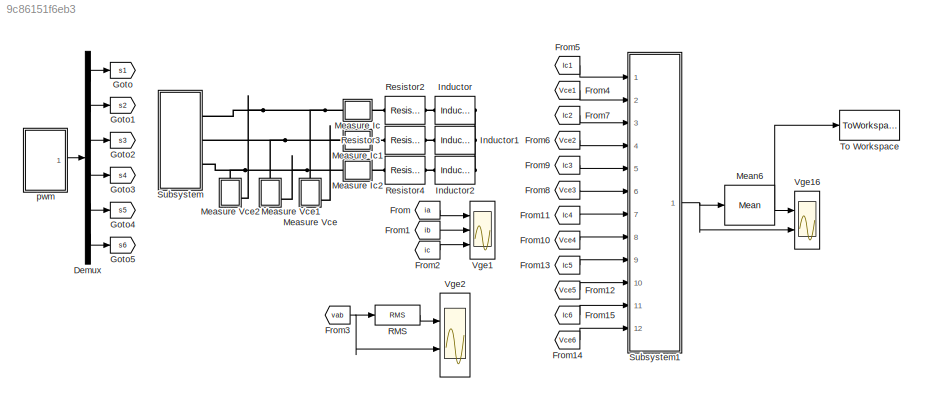
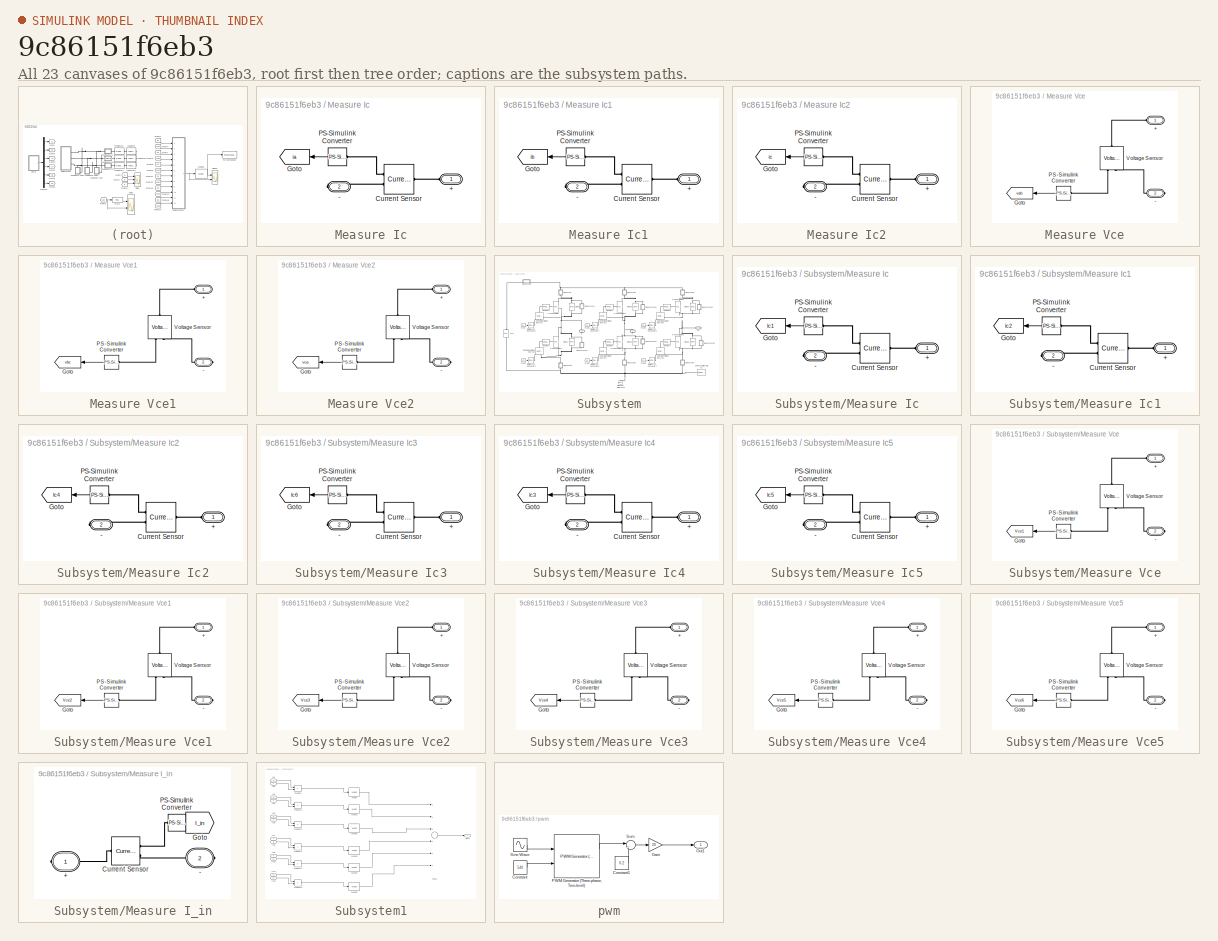
[diagram: thumbnail index - all 23 canvases of the model, root first then tree order]
MODEL slx_9c86151f6eb3
KIND model
CONFIG AbsTol = 1e-3
CONFIG EnableMultiTasking = on
CONFIG FixedStep = auto
CONFIG MaxStep = auto
CONFIG MinStep = auto
CONFIG RelTol = 1e-3
CONFIG SampleTimeConstraint = Unconstrained
CONFIG Solver = VariableStepAuto
CONFIG SolverName = VariableStepAuto
CONFIG StartTime = 0.0
CONFIG StopTime = 0.015
BLOCK [Demux] Demux
  DisplayOption = bar
  Outputs = 6
  Ports = [1, 6]
BLOCK [From] From
  GotoTag = ia
  TagVisibility = global
BLOCK [From] From1
  GotoTag = ib
  TagVisibility = global
BLOCK [From] From10
  GotoTag = Vce4
  TagVisibility = global
BLOCK [From] From11
  GotoTag = Ic4
  TagVisibility = global
BLOCK [From] From12
  GotoTag = Vce5
  TagVisibility = global
BLOCK [From] From13
  GotoTag = Ic5
  TagVisibility = global
BLOCK [From] From14
  GotoTag = Vce6
  TagVisibility = global
BLOCK [From] From15
  GotoTag = Ic6
  TagVisibility = global
BLOCK [From] From2
  GotoTag = ic
  TagVisibility = global
BLOCK [From] From3
  GotoTag = vab
  TagVisibility = global
BLOCK [From] From4
  GotoTag = Vce1
  TagVisibility = global
BLOCK [From] From5
  GotoTag = Ic1
  TagVisibility = global
BLOCK [From] From6
  GotoTag = Vce2
  TagVisibility = global
BLOCK [From] From7
  GotoTag = Ic2
  TagVisibility = global
BLOCK [From] From8
  GotoTag = Vce3
  TagVisibility = global
BLOCK [From] From9
  GotoTag = Ic3
  TagVisibility = global
BLOCK [Goto] Goto
  GotoTag = s1
  TagVisibility = global
BLOCK [Goto] Goto1
  GotoTag = s2
  TagVisibility = global
BLOCK [Goto] Goto2
  GotoTag = s3
  TagVisibility = global
BLOCK [Goto] Goto3
  GotoTag = s4
  TagVisibility = global
BLOCK [Goto] Goto4
  GotoTag = s5
  TagVisibility = global
BLOCK [Goto] Goto5
  GotoTag = s6
  TagVisibility = global
BLOCK [Reference] Inductor  REF=fl_lib/Electrical/Electrical Elements/Inductor
  Ports = [0, 0, 0, 0, 0, 1, 1]
  SourceBlock = fl_lib/Electrical/Electrical Elements/Inductor
  SourceProductBaseCode = SS
  SourceProductName = Simscape
  SourceType = Inductor
BLOCK [Reference] Inductor1  REF=fl_lib/Electrical/Electrical Elements/Inductor
  Ports = [0, 0, 0, 0, 0, 1, 1]
  SourceBlock = fl_lib/Electrical/Electrical Elements/Inductor
  SourceProductBaseCode = SS
  SourceProductName = Simscape
  SourceType = Inductor
BLOCK [Reference] Inductor2  REF=fl_lib/Electrical/Electrical Elements/Inductor
  Ports = [0, 0, 0, 0, 0, 1, 1]
  SourceBlock = fl_lib/Electrical/Electrical Elements/Inductor
  SourceProductBaseCode = SS
  SourceProductName = Simscape
  SourceType = Inductor
BLOCK [Reference] Mean6  REF=powerlib_meascontrol/Measurements/Mean
  Ports = [1, 1]
  SourceBlock = powerlib_meascontrol/Measurements/Mean
  SourceProductBaseCode = PS
  SourceProductName = Simscape Power Systems
  SourceType = Mean
BLOCK [SubSystem] Measure Ic
  Ports = [0, 0, 0, 0, 0, 1, 1]
  RequestExecContextInheritance = off
BLOCK [PMIOPort] Measure Ic/+
  Side = Left
BLOCK [PMIOPort] Measure Ic/-
  Port = 2
  Side = Right
BLOCK [Reference] Measure Ic/Current Sensor  REF=fl_lib/Electrical/Electrical Sensors/Current Sensor
  Ports = [0, 0, 0, 0, 0, 1, 2]
  SourceBlock = fl_lib/Electrical/Electrical Sensors/Current Sensor
  SourceProductBaseCode = SS
  SourceProductName = Simscape
  SourceType = Current Sensor
BLOCK [Goto] Measure Ic/Goto
  GotoTag = ia
  TagVisibility = global
BLOCK [Reference] Measure Ic/PS-Simulink Converter  REF=nesl_utility/PS-Simulink
Converter
  Ports = [0, 1, 0, 0, 0, 1]
  SourceBlock = nesl_utility/PS-Simulink\nConverter
  SourceProductBaseCode = SS
  SourceProductName = Simscape
  SourceType = PS-Simulink\nConverter
BLOCK [SubSystem] Measure Ic1
  Ports = [0, 0, 0, 0, 0, 1, 1]
  RequestExecContextInheritance = off
BLOCK [PMIOPort] Measure Ic1/+
  Side = Left
BLOCK [PMIOPort] Measure Ic1/-
  Port = 2
  Side = Right
BLOCK [Reference] Measure Ic1/Current Sensor  REF=fl_lib/Electrical/Electrical Sensors/Current Sensor
  Ports = [0, 0, 0, 0, 0, 1, 2]
  SourceBlock = fl_lib/Electrical/Electrical Sensors/Current Sensor
  SourceProductBaseCode = SS
  SourceProductName = Simscape
  SourceType = Current Sensor
BLOCK [Goto] Measure Ic1/Goto
  GotoTag = ib
  TagVisibility = global
BLOCK [Reference] Measure Ic1/PS-Simulink Converter  REF=nesl_utility/PS-Simulink
Converter
  Ports = [0, 1, 0, 0, 0, 1]
  SourceBlock = nesl_utility/PS-Simulink\nConverter
  SourceProductBaseCode = SS
  SourceProductName = Simscape
  SourceType = PS-Simulink\nConverter
BLOCK [SubSystem] Measure Ic2
  Ports = [0, 0, 0, 0, 0, 1, 1]
  RequestExecContextInheritance = off
BLOCK [PMIOPort] Measure Ic2/+
  Side = Left
BLOCK [PMIOPort] Measure Ic2/-
  Port = 2
  Side = Right
BLOCK [Reference] Measure Ic2/Current Sensor  REF=fl_lib/Electrical/Electrical Sensors/Current Sensor
  Ports = [0, 0, 0, 0, 0, 1, 2]
  SourceBlock = fl_lib/Electrical/Electrical Sensors/Current Sensor
  SourceProductBaseCode = SS
  SourceProductName = Simscape
  SourceType = Current Sensor
BLOCK [Goto] Measure Ic2/Goto
  GotoTag = ic
  TagVisibility = global
BLOCK [Reference] Measure Ic2/PS-Simulink Converter  REF=nesl_utility/PS-Simulink
Converter
  Ports = [0, 1, 0, 0, 0, 1]
  SourceBlock = nesl_utility/PS-Simulink\nConverter
  SourceProductBaseCode = SS
  SourceProductName = Simscape
  SourceType = PS-Simulink\nConverter
BLOCK [SubSystem] Measure Vce
  Ports = [0, 0, 0, 0, 0, 1, 1]
  RequestExecContextInheritance = off
BLOCK [PMIOPort] Measure Vce/+
  Side = Left
BLOCK [PMIOPort] Measure Vce/-
  Port = 2
  Side = Right
BLOCK [Goto] Measure Vce/Goto
  GotoTag = vab
  TagVisibility = global
BLOCK [Reference] Measure Vce/PS-Simulink Converter  REF=nesl_utility/PS-Simulink
Converter
  Ports = [0, 1, 0, 0, 0, 1]
  SourceBlock = nesl_utility/PS-Simulink\nConverter
  SourceProductBaseCode = SS
  SourceProductName = Simscape
  SourceType = PS-Simulink\nConverter
BLOCK [Reference] Measure Vce/Voltage Sensor  REF=fl_lib/Electrical/Electrical Sensors/Voltage Sensor
  Ports = [0, 0, 0, 0, 0, 1, 2]
  SourceBlock = fl_lib/Electrical/Electrical Sensors/Voltage Sensor
  SourceProductBaseCode = SS
  SourceProductName = Simscape
  SourceType = Voltage Sensor
BLOCK [SubSystem] Measure Vce1
  Ports = [0, 0, 0, 0, 0, 1, 1]
  RequestExecContextInheritance = off
BLOCK [PMIOPort] Measure Vce1/+
  Side = Left
BLOCK [PMIOPort] Measure Vce1/-
  Port = 2
  Side = Right
BLOCK [Goto] Measure Vce1/Goto
  GotoTag = vbc
  TagVisibility = global
BLOCK [Reference] Measure Vce1/PS-Simulink Converter  REF=nesl_utility/PS-Simulink
Converter
  Ports = [0, 1, 0, 0, 0, 1]
  SourceBlock = nesl_utility/PS-Simulink\nConverter
  SourceProductBaseCode = SS
  SourceProductName = Simscape
  SourceType = PS-Simulink\nConverter
BLOCK [Reference] Measure Vce1/Voltage Sensor  REF=fl_lib/Electrical/Electrical Sensors/Voltage Sensor
  Ports = [0, 0, 0, 0, 0, 1, 2]
  SourceBlock = fl_lib/Electrical/Electrical Sensors/Voltage Sensor
  SourceProductBaseCode = SS
  SourceProductName = Simscape
  SourceType = Voltage Sensor
BLOCK [SubSystem] Measure Vce2
  Ports = [0, 0, 0, 0, 0, 1, 1]
  RequestExecContextInheritance = off
BLOCK [PMIOPort] Measure Vce2/+
  Side = Left
BLOCK [PMIOPort] Measure Vce2/-
  Port = 2
  Side = Right
BLOCK [Goto] Measure Vce2/Goto
  GotoTag = vca
  TagVisibility = global
BLOCK [Reference] Measure Vce2/PS-Simulink Converter  REF=nesl_utility/PS-Simulink
Converter
  Ports = [0, 1, 0, 0, 0, 1]
  SourceBlock = nesl_utility/PS-Simulink\nConverter
  SourceProductBaseCode = SS
  SourceProductName = Simscape
  SourceType = PS-Simulink\nConverter
BLOCK [Reference] Measure Vce2/Voltage Sensor  REF=fl_lib/Electrical/Electrical Sensors/Voltage Sensor
  Ports = [0, 0, 0, 0, 0, 1, 2]
  SourceBlock = fl_lib/Electrical/Electrical Sensors/Voltage Sensor
  SourceProductBaseCode = SS
  SourceProductName = Simscape
  SourceType = Voltage Sensor
BLOCK [Reference] RMS  REF=powerlib_meascontrol/Measurements/RMS
  Ports = [1, 1]
  SourceBlock = powerlib_meascontrol/Measurements/RMS
  SourceProductBaseCode = PS
  SourceProductName = Simscape Power Systems
  SourceType = RMS
BLOCK [Reference] Resistor2  REF=fl_lib/Electrical/Electrical Elements/Resistor
  Ports = [0, 0, 0, 0, 0, 1, 1]
  SourceBlock = fl_lib/Electrical/Electrical Elements/Resistor
  SourceProductBaseCode = SS
  SourceProductName = Simscape
  SourceType = Resistor
BLOCK [Reference] Resistor3  REF=fl_lib/Electrical/Electrical Elements/Resistor
  Ports = [0, 0, 0, 0, 0, 1, 1]
  SourceBlock = fl_lib/Electrical/Electrical Elements/Resistor
  SourceProductBaseCode = SS
  SourceProductName = Simscape
  SourceType = Resistor
BLOCK [Reference] Resistor4  REF=fl_lib/Electrical/Electrical Elements/Resistor
  Ports = [0, 0, 0, 0, 0, 1, 1]
  SourceBlock = fl_lib/Electrical/Electrical Elements/Resistor
  SourceProductBaseCode = SS
  SourceProductName = Simscape
  SourceType = Resistor
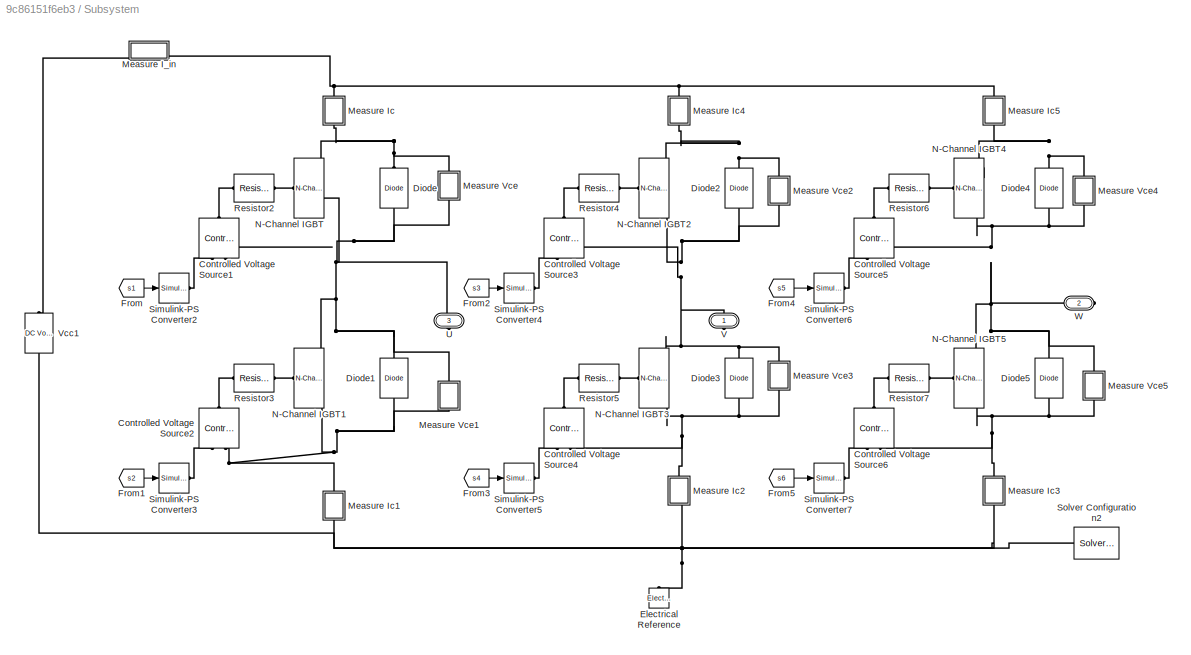
BLOCK [SubSystem] Subsystem
  Ports = [0, 0, 0, 0, 0, 0, 3]
  RequestExecContextInheritance = off
BLOCK [Reference] Subsystem/Controlled Voltage Source1  REF=fl_lib/Electrical/Electrical Sources/Controlled Voltage
Source
  Ports = [0, 0, 0, 0, 0, 1, 2]
  SourceBlock = fl_lib/Electrical/Electrical Sources/Controlled Voltage\nSource
  SourceProductBaseCode = SS
  SourceProductName = Simscape
  SourceType = Controlled Voltage\nSource
BLOCK [Reference] Subsystem/Controlled Voltage Source2  REF=fl_lib/Electrical/Electrical Sources/Controlled Voltage
Source
  Ports = [0, 0, 0, 0, 0, 1, 2]
  SourceBlock = fl_lib/Electrical/Electrical Sources/Controlled Voltage\nSource
  SourceProductBaseCode = SS
  SourceProductName = Simscape
  SourceType = Controlled Voltage\nSource
BLOCK [Reference] Subsystem/Controlled Voltage Source3  REF=fl_lib/Electrical/Electrical Sources/Controlled Voltage
Source
  Ports = [0, 0, 0, 0, 0, 1, 2]
  SourceBlock = fl_lib/Electrical/Electrical Sources/Controlled Voltage\nSource
  SourceProductBaseCode = SS
  SourceProductName = Simscape
  SourceType = Controlled Voltage\nSource
BLOCK [Reference] Subsystem/Controlled Voltage Source4  REF=fl_lib/Electrical/Electrical Sources/Controlled Voltage
Source
  Ports = [0, 0, 0, 0, 0, 1, 2]
  SourceBlock = fl_lib/Electrical/Electrical Sources/Controlled Voltage\nSource
  SourceProductBaseCode = SS
  SourceProductName = Simscape
  SourceType = Controlled Voltage\nSource
BLOCK [Reference] Subsystem/Controlled Voltage Source5  REF=fl_lib/Electrical/Electrical Sources/Controlled Voltage
Source
  Ports = [0, 0, 0, 0, 0, 1, 2]
  SourceBlock = fl_lib/Electrical/Electrical Sources/Controlled Voltage\nSource
  SourceProductBaseCode = SS
  SourceProductName = Simscape
  SourceType = Controlled Voltage\nSource
BLOCK [Reference] Subsystem/Controlled Voltage Source6  REF=fl_lib/Electrical/Electrical Sources/Controlled Voltage
Source
  Ports = [0, 0, 0, 0, 0, 1, 2]
  SourceBlock = fl_lib/Electrical/Electrical Sources/Controlled Voltage\nSource
  SourceProductBaseCode = SS
  SourceProductName = Simscape
  SourceType = Controlled Voltage\nSource
BLOCK [Reference] Subsystem/Diode  REF=elec_lib/Semiconductor
Devices/Diode
  Ports = [0, 0, 0, 0, 0, 1, 1]
  SourceBlock = elec_lib/Semiconductor\nDevices/Diode
  SourceProductBaseCode = SN
  SourceProductName = Simscape Electronics
  SourceType = Diode
BLOCK [Reference] Subsystem/Diode1  REF=elec_lib/Semiconductor
Devices/Diode
  Ports = [0, 0, 0, 0, 0, 1, 1]
  SourceBlock = elec_lib/Semiconductor\nDevices/Diode
  SourceProductBaseCode = SN
  SourceProductName = Simscape Electronics
  SourceType = Diode
BLOCK [Reference] Subsystem/Diode2  REF=elec_lib/Semiconductor
Devices/Diode
  Ports = [0, 0, 0, 0, 0, 1, 1]
  SourceBlock = elec_lib/Semiconductor\nDevices/Diode
  SourceProductBaseCode = SN
  SourceProductName = Simscape Electronics
  SourceType = Diode
BLOCK [Reference] Subsystem/Diode3  REF=elec_lib/Semiconductor
Devices/Diode
  Ports = [0, 0, 0, 0, 0, 1, 1]
  SourceBlock = elec_lib/Semiconductor\nDevices/Diode
  SourceProductBaseCode = SN
  SourceProductName = Simscape Electronics
  SourceType = Diode
BLOCK [Reference] Subsystem/Diode4  REF=elec_lib/Semiconductor
Devices/Diode
  Ports = [0, 0, 0, 0, 0, 1, 1]
  SourceBlock = elec_lib/Semiconductor\nDevices/Diode
  SourceProductBaseCode = SN
  SourceProductName = Simscape Electronics
  SourceType = Diode
BLOCK [Reference] Subsystem/Diode5  REF=elec_lib/Semiconductor
Devices/Diode
  Ports = [0, 0, 0, 0, 0, 1, 1]
  SourceBlock = elec_lib/Semiconductor\nDevices/Diode
  SourceProductBaseCode = SN
  SourceProductName = Simscape Electronics
  SourceType = Diode
BLOCK [Reference] Subsystem/Electrical Reference  REF=fl_lib/Electrical/Electrical Elements/Electrical Reference
  Ports = [0, 0, 0, 0, 0, 1]
  SourceBlock = fl_lib/Electrical/Electrical Elements/Electrical Reference
  SourceProductBaseCode = SS
  SourceProductName = Simscape
  SourceType = Electrical Reference
BLOCK [From] Subsystem/From
  GotoTag = s1
  TagVisibility = global
BLOCK [From] Subsystem/From1
  GotoTag = s2
  TagVisibility = global
BLOCK [From] Subsystem/From2
  GotoTag = s3
  TagVisibility = global
BLOCK [From] Subsystem/From3
  GotoTag = s4
  TagVisibility = global
BLOCK [From] Subsystem/From4
  GotoTag = s5
  TagVisibility = global
BLOCK [From] Subsystem/From5
  GotoTag = s6
  TagVisibility = global
BLOCK [SubSystem] Subsystem/Measure I_in
  Ports = [0, 0, 0, 0, 0, 0, 2]
  RequestExecContextInheritance = off
BLOCK [PMIOPort] Subsystem/Measure I_in/+
  Side = Right
  Tag = PMCPort
BLOCK [PMIOPort] Subsystem/Measure I_in/-
  Port = 2
  Side = Right
  Tag = PMCPort
BLOCK [Reference] Subsystem/Measure I_in/Current Sensor  REF=fl_lib/Electrical/Electrical Sensors/Current Sensor
  Ports = [0, 0, 0, 0, 0, 1, 2]
  SourceBlock = fl_lib/Electrical/Electrical Sensors/Current Sensor
  SourceProductBaseCode = SS
  SourceProductName = Simscape
  SourceType = Current Sensor
BLOCK [Goto] Subsystem/Measure I_in/Goto
  GotoTag = I_in
  TagVisibility = global
BLOCK [Reference] Subsystem/Measure I_in/PS-Simulink Converter  REF=nesl_utility/PS-Simulink
Converter
  Ports = [0, 1, 0, 0, 0, 1]
  SourceBlock = nesl_utility/PS-Simulink\nConverter
  SourceProductBaseCode = SS
  SourceProductName = Simscape
  SourceType = PS-Simulink\nConverter
BLOCK [SubSystem] Subsystem/Measure Ic
  Ports = [0, 0, 0, 0, 0, 1, 1]
  RequestExecContextInheritance = off
BLOCK [PMIOPort] Subsystem/Measure Ic/+
  Side = Left
BLOCK [PMIOPort] Subsystem/Measure Ic/-
  Port = 2
  Side = Right
BLOCK [Reference] Subsystem/Measure Ic/Current Sensor  REF=fl_lib/Electrical/Electrical Sensors/Current Sensor
  Ports = [0, 0, 0, 0, 0, 1, 2]
  SourceBlock = fl_lib/Electrical/Electrical Sensors/Current Sensor
  SourceProductBaseCode = SS
  SourceProductName = Simscape
  SourceType = Current Sensor
BLOCK [Goto] Subsystem/Measure Ic/Goto
  GotoTag = Ic1
  TagVisibility = global
BLOCK [Reference] Subsystem/Measure Ic/PS-Simulink Converter  REF=nesl_utility/PS-Simulink
Converter
  Ports = [0, 1, 0, 0, 0, 1]
  SourceBlock = nesl_utility/PS-Simulink\nConverter
  SourceProductBaseCode = SS
  SourceProductName = Simscape
  SourceType = PS-Simulink\nConverter
BLOCK [SubSystem] Subsystem/Measure Ic1
  Ports = [0, 0, 0, 0, 0, 1, 1]
  RequestExecContextInheritance = off
BLOCK [PMIOPort] Subsystem/Measure Ic1/+
  Side = Left
BLOCK [PMIOPort] Subsystem/Measure Ic1/-
  Port = 2
  Side = Right
BLOCK [Reference] Subsystem/Measure Ic1/Current Sensor  REF=fl_lib/Electrical/Electrical Sensors/Current Sensor
  Ports = [0, 0, 0, 0, 0, 1, 2]
  SourceBlock = fl_lib/Electrical/Electrical Sensors/Current Sensor
  SourceProductBaseCode = SS
  SourceProductName = Simscape
  SourceType = Current Sensor
BLOCK [Goto] Subsystem/Measure Ic1/Goto
  GotoTag = Ic2
  TagVisibility = global
BLOCK [Reference] Subsystem/Measure Ic1/PS-Simulink Converter  REF=nesl_utility/PS-Simulink
Converter
  Ports = [0, 1, 0, 0, 0, 1]
  SourceBlock = nesl_utility/PS-Simulink\nConverter
  SourceProductBaseCode = SS
  SourceProductName = Simscape
  SourceType = PS-Simulink\nConverter
BLOCK [SubSystem] Subsystem/Measure Ic2
  Ports = [0, 0, 0, 0, 0, 1, 1]
  RequestExecContextInheritance = off
BLOCK [PMIOPort] Subsystem/Measure Ic2/+
  Side = Left
BLOCK [PMIOPort] Subsystem/Measure Ic2/-
  Port = 2
  Side = Right
BLOCK [Reference] Subsystem/Measure Ic2/Current Sensor  REF=fl_lib/Electrical/Electrical Sensors/Current Sensor
  Ports = [0, 0, 0, 0, 0, 1, 2]
  SourceBlock = fl_lib/Electrical/Electrical Sensors/Current Sensor
  SourceProductBaseCode = SS
  SourceProductName = Simscape
  SourceType = Current Sensor
BLOCK [Goto] Subsystem/Measure Ic2/Goto
  GotoTag = Ic4
  TagVisibility = global
BLOCK [Reference] Subsystem/Measure Ic2/PS-Simulink Converter  REF=nesl_utility/PS-Simulink
Converter
  Ports = [0, 1, 0, 0, 0, 1]
  SourceBlock = nesl_utility/PS-Simulink\nConverter
  SourceProductBaseCode = SS
  SourceProductName = Simscape
  SourceType = PS-Simulink\nConverter
BLOCK [SubSystem] Subsystem/Measure Ic3
  Ports = [0, 0, 0, 0, 0, 1, 1]
  RequestExecContextInheritance = off
BLOCK [PMIOPort] Subsystem/Measure Ic3/+
  Side = Left
BLOCK [PMIOPort] Subsystem/Measure Ic3/-
  Port = 2
  Side = Right
BLOCK [Reference] Subsystem/Measure Ic3/Current Sensor  REF=fl_lib/Electrical/Electrical Sensors/Current Sensor
  Ports = [0, 0, 0, 0, 0, 1, 2]
  SourceBlock = fl_lib/Electrical/Electrical Sensors/Current Sensor
  SourceProductBaseCode = SS
  SourceProductName = Simscape
  SourceType = Current Sensor
BLOCK [Goto] Subsystem/Measure Ic3/Goto
  GotoTag = Ic6
  TagVisibility = global
BLOCK [Reference] Subsystem/Measure Ic3/PS-Simulink Converter  REF=nesl_utility/PS-Simulink
Converter
  Ports = [0, 1, 0, 0, 0, 1]
  SourceBlock = nesl_utility/PS-Simulink\nConverter
  SourceProductBaseCode = SS
  SourceProductName = Simscape
  SourceType = PS-Simulink\nConverter
BLOCK [SubSystem] Subsystem/Measure Ic4
  Ports = [0, 0, 0, 0, 0, 1, 1]
  RequestExecContextInheritance = off
BLOCK [PMIOPort] Subsystem/Measure Ic4/+
  Side = Left
BLOCK [PMIOPort] Subsystem/Measure Ic4/-
  Port = 2
  Side = Right
BLOCK [Reference] Subsystem/Measure Ic4/Current Sensor  REF=fl_lib/Electrical/Electrical Sensors/Current Sensor
  Ports = [0, 0, 0, 0, 0, 1, 2]
  SourceBlock = fl_lib/Electrical/Electrical Sensors/Current Sensor
  SourceProductBaseCode = SS
  SourceProductName = Simscape
  SourceType = Current Sensor
BLOCK [Goto] Subsystem/Measure Ic4/Goto
  GotoTag = Ic3
  TagVisibility = global
BLOCK [Reference] Subsystem/Measure Ic4/PS-Simulink Converter  REF=nesl_utility/PS-Simulink
Converter
  Ports = [0, 1, 0, 0, 0, 1]
  SourceBlock = nesl_utility/PS-Simulink\nConverter
  SourceProductBaseCode = SS
  SourceProductName = Simscape
  SourceType = PS-Simulink\nConverter
BLOCK [SubSystem] Subsystem/Measure Ic5
  Ports = [0, 0, 0, 0, 0, 1, 1]
  RequestExecContextInheritance = off
BLOCK [PMIOPort] Subsystem/Measure Ic5/+
  Side = Left
BLOCK [PMIOPort] Subsystem/Measure Ic5/-
  Port = 2
  Side = Right
BLOCK [Reference] Subsystem/Measure Ic5/Current Sensor  REF=fl_lib/Electrical/Electrical Sensors/Current Sensor
  Ports = [0, 0, 0, 0, 0, 1, 2]
  SourceBlock = fl_lib/Electrical/Electrical Sensors/Current Sensor
  SourceProductBaseCode = SS
  SourceProductName = Simscape
  SourceType = Current Sensor
BLOCK [Goto] Subsystem/Measure Ic5/Goto
  GotoTag = Ic5
  TagVisibility = global
BLOCK [Reference] Subsystem/Measure Ic5/PS-Simulink Converter  REF=nesl_utility/PS-Simulink
Converter
  Ports = [0, 1, 0, 0, 0, 1]
  SourceBlock = nesl_utility/PS-Simulink\nConverter
  SourceProductBaseCode = SS
  SourceProductName = Simscape
  SourceType = PS-Simulink\nConverter
BLOCK [SubSystem] Subsystem/Measure Vce
  Ports = [0, 0, 0, 0, 0, 1, 1]
  RequestExecContextInheritance = off
BLOCK [PMIOPort] Subsystem/Measure Vce/+
  Side = Left
BLOCK [PMIOPort] Subsystem/Measure Vce/-
  Port = 2
  Side = Right
BLOCK [Goto] Subsystem/Measure Vce/Goto
  GotoTag = Vce1
  TagVisibility = global
BLOCK [Reference] Subsystem/Measure Vce/PS-Simulink Converter  REF=nesl_utility/PS-Simulink
Converter
  Ports = [0, 1, 0, 0, 0, 1]
  SourceBlock = nesl_utility/PS-Simulink\nConverter
  SourceProductBaseCode = SS
  SourceProductName = Simscape
  SourceType = PS-Simulink\nConverter
BLOCK [Reference] Subsystem/Measure Vce/Voltage Sensor  REF=fl_lib/Electrical/Electrical Sensors/Voltage Sensor
  Ports = [0, 0, 0, 0, 0, 1, 2]
  SourceBlock = fl_lib/Electrical/Electrical Sensors/Voltage Sensor
  SourceProductBaseCode = SS
  SourceProductName = Simscape
  SourceType = Voltage Sensor
BLOCK [SubSystem] Subsystem/Measure Vce1
  Ports = [0, 0, 0, 0, 0, 1, 1]
  RequestExecContextInheritance = off
BLOCK [PMIOPort] Subsystem/Measure Vce1/+
  Side = Left
BLOCK [PMIOPort] Subsystem/Measure Vce1/-
  Port = 2
  Side = Right
BLOCK [Goto] Subsystem/Measure Vce1/Goto
  GotoTag = Vce2
  TagVisibility = global
BLOCK [Reference] Subsystem/Measure Vce1/PS-Simulink Converter  REF=nesl_utility/PS-Simulink
Converter
  Ports = [0, 1, 0, 0, 0, 1]
  SourceBlock = nesl_utility/PS-Simulink\nConverter
  SourceProductBaseCode = SS
  SourceProductName = Simscape
  SourceType = PS-Simulink\nConverter
BLOCK [Reference] Subsystem/Measure Vce1/Voltage Sensor  REF=fl_lib/Electrical/Electrical Sensors/Voltage Sensor
  Ports = [0, 0, 0, 0, 0, 1, 2]
  SourceBlock = fl_lib/Electrical/Electrical Sensors/Voltage Sensor
  SourceProductBaseCode = SS
  SourceProductName = Simscape
  SourceType = Voltage Sensor
BLOCK [SubSystem] Subsystem/Measure Vce2
  Ports = [0, 0, 0, 0, 0, 1, 1]
  RequestExecContextInheritance = off
BLOCK [PMIOPort] Subsystem/Measure Vce2/+
  Side = Left
BLOCK [PMIOPort] Subsystem/Measure Vce2/-
  Port = 2
  Side = Right
BLOCK [Goto] Subsystem/Measure Vce2/Goto
  GotoTag = Vce3
  TagVisibility = global
BLOCK [Reference] Subsystem/Measure Vce2/PS-Simulink Converter  REF=nesl_utility/PS-Simulink
Converter
  Ports = [0, 1, 0, 0, 0, 1]
  SourceBlock = nesl_utility/PS-Simulink\nConverter
  SourceProductBaseCode = SS
  SourceProductName = Simscape
  SourceType = PS-Simulink\nConverter
BLOCK [Reference] Subsystem/Measure Vce2/Voltage Sensor  REF=fl_lib/Electrical/Electrical Sensors/Voltage Sensor
  Ports = [0, 0, 0, 0, 0, 1, 2]
  SourceBlock = fl_lib/Electrical/Electrical Sensors/Voltage Sensor
  SourceProductBaseCode = SS
  SourceProductName = Simscape
  SourceType = Voltage Sensor
BLOCK [SubSystem] Subsystem/Measure Vce3
  Ports = [0, 0, 0, 0, 0, 1, 1]
  RequestExecContextInheritance = off
BLOCK [PMIOPort] Subsystem/Measure Vce3/+
  Side = Left
BLOCK [PMIOPort] Subsystem/Measure Vce3/-
  Port = 2
  Side = Right
BLOCK [Goto] Subsystem/Measure Vce3/Goto
  GotoTag = Vce4
  TagVisibility = global
BLOCK [Reference] Subsystem/Measure Vce3/PS-Simulink Converter  REF=nesl_utility/PS-Simulink
Converter
  Ports = [0, 1, 0, 0, 0, 1]
  SourceBlock = nesl_utility/PS-Simulink\nConverter
  SourceProductBaseCode = SS
  SourceProductName = Simscape
  SourceType = PS-Simulink\nConverter
BLOCK [Reference] Subsystem/Measure Vce3/Voltage Sensor  REF=fl_lib/Electrical/Electrical Sensors/Voltage Sensor
  Ports = [0, 0, 0, 0, 0, 1, 2]
  SourceBlock = fl_lib/Electrical/Electrical Sensors/Voltage Sensor
  SourceProductBaseCode = SS
  SourceProductName = Simscape
  SourceType = Voltage Sensor
BLOCK [SubSystem] Subsystem/Measure Vce4
  Ports = [0, 0, 0, 0, 0, 1, 1]
  RequestExecContextInheritance = off
BLOCK [PMIOPort] Subsystem/Measure Vce4/+
  Side = Left
BLOCK [PMIOPort] Subsystem/Measure Vce4/-
  Port = 2
  Side = Right
BLOCK [Goto] Subsystem/Measure Vce4/Goto
  GotoTag = Vce5
  TagVisibility = global
BLOCK [Reference] Subsystem/Measure Vce4/PS-Simulink Converter  REF=nesl_utility/PS-Simulink
Converter
  Ports = [0, 1, 0, 0, 0, 1]
  SourceBlock = nesl_utility/PS-Simulink\nConverter
  SourceProductBaseCode = SS
  SourceProductName = Simscape
  SourceType = PS-Simulink\nConverter
BLOCK [Reference] Subsystem/Measure Vce4/Voltage Sensor  REF=fl_lib/Electrical/Electrical Sensors/Voltage Sensor
  Ports = [0, 0, 0, 0, 0, 1, 2]
  SourceBlock = fl_lib/Electrical/Electrical Sensors/Voltage Sensor
  SourceProductBaseCode = SS
  SourceProductName = Simscape
  SourceType = Voltage Sensor
BLOCK [SubSystem] Subsystem/Measure Vce5
  Ports = [0, 0, 0, 0, 0, 1, 1]
  RequestExecContextInheritance = off
BLOCK [PMIOPort] Subsystem/Measure Vce5/+
  Side = Left
BLOCK [PMIOPort] Subsystem/Measure Vce5/-
  Port = 2
  Side = Right
BLOCK [Goto] Subsystem/Measure Vce5/Goto
  GotoTag = Vce6
  TagVisibility = global
BLOCK [Reference] Subsystem/Measure Vce5/PS-Simulink Converter  REF=nesl_utility/PS-Simulink
Converter
  Ports = [0, 1, 0, 0, 0, 1]
  SourceBlock = nesl_utility/PS-Simulink\nConverter
  SourceProductBaseCode = SS
  SourceProductName = Simscape
  SourceType = PS-Simulink\nConverter
BLOCK [Reference] Subsystem/Measure Vce5/Voltage Sensor  REF=fl_lib/Electrical/Electrical Sensors/Voltage Sensor
  Ports = [0, 0, 0, 0, 0, 1, 2]
  SourceBlock = fl_lib/Electrical/Electrical Sensors/Voltage Sensor
  SourceProductBaseCode = SS
  SourceProductName = Simscape
  SourceType = Voltage Sensor
BLOCK [Reference] Subsystem/N-Channel IGBT  REF=elec_lib/Semiconductor
Devices/N-Channel IGBT
  Ports = [0, 0, 0, 0, 0, 1, 2]
  SourceBlock = elec_lib/Semiconductor\nDevices/N-Channel IGBT
  SourceProductBaseCode = SN
  SourceProductName = Simscape Electronics
  SourceType = N-Channel IGBT
BLOCK [Reference] Subsystem/N-Channel IGBT1  REF=elec_lib/Semiconductor
Devices/N-Channel IGBT
  Ports = [0, 0, 0, 0, 0, 1, 2]
  SourceBlock = elec_lib/Semiconductor\nDevices/N-Channel IGBT
  SourceProductBaseCode = SN
  SourceProductName = Simscape Electronics
  SourceType = N-Channel IGBT
BLOCK [Reference] Subsystem/N-Channel IGBT2  REF=elec_lib/Semiconductor
Devices/N-Channel IGBT
  Ports = [0, 0, 0, 0, 0, 1, 2]
  SourceBlock = elec_lib/Semiconductor\nDevices/N-Channel IGBT
  SourceProductBaseCode = SN
  SourceProductName = Simscape Electronics
  SourceType = N-Channel IGBT
BLOCK [Reference] Subsystem/N-Channel IGBT3  REF=elec_lib/Semiconductor
Devices/N-Channel IGBT
  Ports = [0, 0, 0, 0, 0, 1, 2]
  SourceBlock = elec_lib/Semiconductor\nDevices/N-Channel IGBT
  SourceProductBaseCode = SN
  SourceProductName = Simscape Electronics
  SourceType = N-Channel IGBT
BLOCK [Reference] Subsystem/N-Channel IGBT4  REF=elec_lib/Semiconductor
Devices/N-Channel IGBT
  Ports = [0, 0, 0, 0, 0, 1, 2]
  SourceBlock = elec_lib/Semiconductor\nDevices/N-Channel IGBT
  SourceProductBaseCode = SN
  SourceProductName = Simscape Electronics
  SourceType = N-Channel IGBT
BLOCK [Reference] Subsystem/N-Channel IGBT5  REF=elec_lib/Semiconductor
Devices/N-Channel IGBT
  Ports = [0, 0, 0, 0, 0, 1, 2]
  SourceBlock = elec_lib/Semiconductor\nDevices/N-Channel IGBT
  SourceProductBaseCode = SN
  SourceProductName = Simscape Electronics
  SourceType = N-Channel IGBT
BLOCK [Reference] Subsystem/Resistor2  REF=fl_lib/Electrical/Electrical Elements/Resistor
  Ports = [0, 0, 0, 0, 0, 1, 1]
  SourceBlock = fl_lib/Electrical/Electrical Elements/Resistor
  SourceProductBaseCode = SS
  SourceProductName = Simscape
  SourceType = Resistor
BLOCK [Reference] Subsystem/Resistor3  REF=fl_lib/Electrical/Electrical Elements/Resistor
  Ports = [0, 0, 0, 0, 0, 1, 1]
  SourceBlock = fl_lib/Electrical/Electrical Elements/Resistor
  SourceProductBaseCode = SS
  SourceProductName = Simscape
  SourceType = Resistor
BLOCK [Reference] Subsystem/Resistor4  REF=fl_lib/Electrical/Electrical Elements/Resistor
  Ports = [0, 0, 0, 0, 0, 1, 1]
  SourceBlock = fl_lib/Electrical/Electrical Elements/Resistor
  SourceProductBaseCode = SS
  SourceProductName = Simscape
  SourceType = Resistor
BLOCK [Reference] Subsystem/Resistor5  REF=fl_lib/Electrical/Electrical Elements/Resistor
  Ports = [0, 0, 0, 0, 0, 1, 1]
  SourceBlock = fl_lib/Electrical/Electrical Elements/Resistor
  SourceProductBaseCode = SS
  SourceProductName = Simscape
  SourceType = Resistor
BLOCK [Reference] Subsystem/Resistor6  REF=fl_lib/Electrical/Electrical Elements/Resistor
  Ports = [0, 0, 0, 0, 0, 1, 1]
  SourceBlock = fl_lib/Electrical/Electrical Elements/Resistor
  SourceProductBaseCode = SS
  SourceProductName = Simscape
  SourceType = Resistor
BLOCK [Reference] Subsystem/Resistor7  REF=fl_lib/Electrical/Electrical Elements/Resistor
  Ports = [0, 0, 0, 0, 0, 1, 1]
  SourceBlock = fl_lib/Electrical/Electrical Elements/Resistor
  SourceProductBaseCode = SS
  SourceProductName = Simscape
  SourceType = Resistor
BLOCK [Reference] Subsystem/Simulink-PS Converter2  REF=nesl_utility/Simulink-PS
Converter
  Ports = [1, 0, 0, 0, 0, 0, 1]
  SourceBlock = nesl_utility/Simulink-PS\nConverter
  SourceProductBaseCode = SS
  SourceProductName = Simscape
  SourceType = Simulink-PS\nConverter
BLOCK [Reference] Subsystem/Simulink-PS Converter3  REF=nesl_utility/Simulink-PS
Converter
  Ports = [1, 0, 0, 0, 0, 0, 1]
  SourceBlock = nesl_utility/Simulink-PS\nConverter
  SourceProductBaseCode = SS
  SourceProductName = Simscape
  SourceType = Simulink-PS\nConverter
BLOCK [Reference] Subsystem/Simulink-PS Converter4  REF=nesl_utility/Simulink-PS
Converter
  Ports = [1, 0, 0, 0, 0, 0, 1]
  SourceBlock = nesl_utility/Simulink-PS\nConverter
  SourceProductBaseCode = SS
  SourceProductName = Simscape
  SourceType = Simulink-PS\nConverter
BLOCK [Reference] Subsystem/Simulink-PS Converter5  REF=nesl_utility/Simulink-PS
Converter
  Ports = [1, 0, 0, 0, 0, 0, 1]
  SourceBlock = nesl_utility/Simulink-PS\nConverter
  SourceProductBaseCode = SS
  SourceProductName = Simscape
  SourceType = Simulink-PS\nConverter
BLOCK [Reference] Subsystem/Simulink-PS Converter6  REF=nesl_utility/Simulink-PS
Converter
  Ports = [1, 0, 0, 0, 0, 0, 1]
  SourceBlock = nesl_utility/Simulink-PS\nConverter
  SourceProductBaseCode = SS
  SourceProductName = Simscape
  SourceType = Simulink-PS\nConverter
BLOCK [Reference] Subsystem/Simulink-PS Converter7  REF=nesl_utility/Simulink-PS
Converter
  Ports = [1, 0, 0, 0, 0, 0, 1]
  SourceBlock = nesl_utility/Simulink-PS\nConverter
  SourceProductBaseCode = SS
  SourceProductName = Simscape
  SourceType = Simulink-PS\nConverter
BLOCK [Reference] Subsystem/Solver Configuration2  REF=nesl_utility/Solver
Configuration
  Ports = [0, 0, 0, 0, 0, 0, 1]
  SourceBlock = nesl_utility/Solver\nConfiguration
  SourceProductBaseCode = SS
  SourceProductName = Simscape
  SourceType = Solver\nConfiguration
BLOCK [PMIOPort] Subsystem/U
  Port = 3
  Side = Right
BLOCK [PMIOPort] Subsystem/V
  Side = Right
BLOCK [Reference] Subsystem/Vcc1  REF=fl_lib/Electrical/Electrical Sources/DC Voltage Source
  Ports = [0, 0, 0, 0, 0, 1, 1]
  SourceBlock = fl_lib/Electrical/Electrical Sources/DC Voltage Source
  SourceProductBaseCode = SS
  SourceProductName = Simscape
  SourceType = DC Voltage Source
BLOCK [PMIOPort] Subsystem/W
  Port = 2
  Side = Right
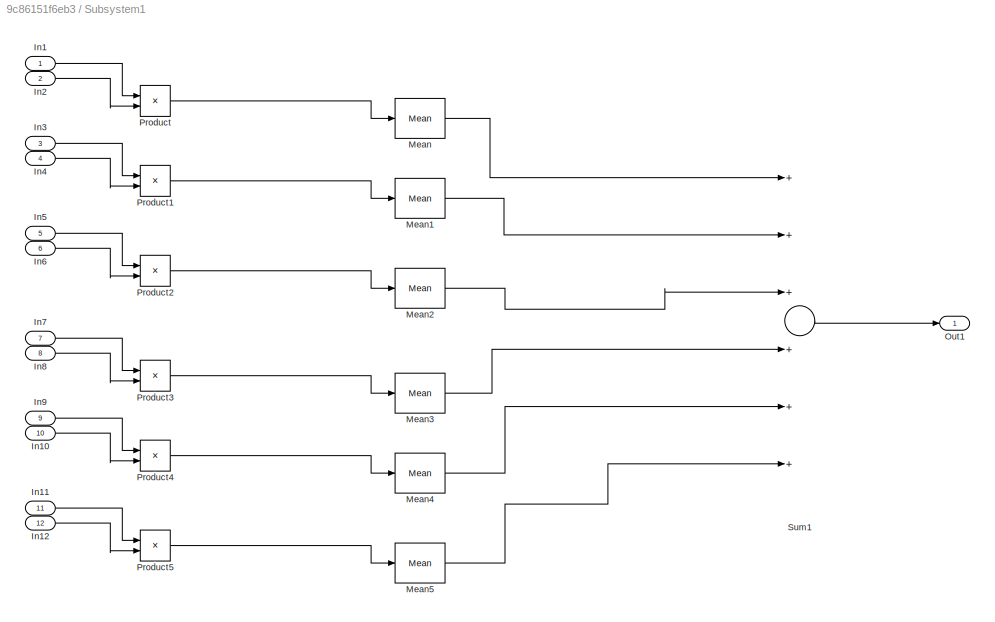
BLOCK [SubSystem] Subsystem1
  Ports = [12, 1]
  RequestExecContextInheritance = off
BLOCK [Inport] Subsystem1/In1
  IconDisplay = Port number
BLOCK [Inport] Subsystem1/In10
  IconDisplay = Port number
  Port = 10
BLOCK [Inport] Subsystem1/In11
  IconDisplay = Port number
  Port = 11
BLOCK [Inport] Subsystem1/In12
  IconDisplay = Port number
  Port = 12
BLOCK [Inport] Subsystem1/In2
  IconDisplay = Port number
  Port = 2
BLOCK [Inport] Subsystem1/In3
  IconDisplay = Port number
  Port = 3
BLOCK [Inport] Subsystem1/In4
  IconDisplay = Port number
  Port = 4
BLOCK [Inport] Subsystem1/In5
  IconDisplay = Port number
  Port = 5
BLOCK [Inport] Subsystem1/In6
  IconDisplay = Port number
  Port = 6
BLOCK [Inport] Subsystem1/In7
  IconDisplay = Port number
  Port = 7
BLOCK [Inport] Subsystem1/In8
  IconDisplay = Port number
  Port = 8
BLOCK [Inport] Subsystem1/In9
  IconDisplay = Port number
  Port = 9
BLOCK [Reference] Subsystem1/Mean  REF=powerlib_meascontrol/Measurements/Mean
  Ports = [1, 1]
  SourceBlock = powerlib_meascontrol/Measurements/Mean
  SourceProductBaseCode = PS
  SourceProductName = Simscape Power Systems
  SourceType = Mean
BLOCK [Reference] Subsystem1/Mean1  REF=powerlib_meascontrol/Measurements/Mean
  Ports = [1, 1]
  SourceBlock = powerlib_meascontrol/Measurements/Mean
  SourceProductBaseCode = PS
  SourceProductName = Simscape Power Systems
  SourceType = Mean
BLOCK [Reference] Subsystem1/Mean2  REF=powerlib_meascontrol/Measurements/Mean
  Ports = [1, 1]
  SourceBlock = powerlib_meascontrol/Measurements/Mean
  SourceProductBaseCode = PS
  SourceProductName = Simscape Power Systems
  SourceType = Mean
BLOCK [Reference] Subsystem1/Mean3  REF=powerlib_meascontrol/Measurements/Mean
  Ports = [1, 1]
  SourceBlock = powerlib_meascontrol/Measurements/Mean
  SourceProductBaseCode = PS
  SourceProductName = Simscape Power Systems
  SourceType = Mean
BLOCK [Reference] Subsystem1/Mean4  REF=powerlib_meascontrol/Measurements/Mean
  Ports = [1, 1]
  SourceBlock = powerlib_meascontrol/Measurements/Mean
  SourceProductBaseCode = PS
  SourceProductName = Simscape Power Systems
  SourceType = Mean
BLOCK [Reference] Subsystem1/Mean5  REF=powerlib_meascontrol/Measurements/Mean
  Ports = [1, 1]
  SourceBlock = powerlib_meascontrol/Measurements/Mean
  SourceProductBaseCode = PS
  SourceProductName = Simscape Power Systems
  SourceType = Mean
BLOCK [Outport] Subsystem1/Out1
  IconDisplay = Port number
BLOCK [Product] Subsystem1/Product
  InputSameDT = off
  OutDataTypeStr = Inherit: Inherit via internal rule
  Ports = [2, 1]
  RndMeth = Floor
  SaturateOnIntegerOverflow = off
BLOCK [Product] Subsystem1/Product1
  InputSameDT = off
  OutDataTypeStr = Inherit: Inherit via internal rule
  Ports = [2, 1]
  RndMeth = Floor
  SaturateOnIntegerOverflow = off
BLOCK [Product] Subsystem1/Product2
  InputSameDT = off
  OutDataTypeStr = Inherit: Inherit via internal rule
  Ports = [2, 1]
  RndMeth = Floor
  SaturateOnIntegerOverflow = off
BLOCK [Product] Subsystem1/Product3
  InputSameDT = off
  OutDataTypeStr = Inherit: Inherit via internal rule
  Ports = [2, 1]
  RndMeth = Floor
  SaturateOnIntegerOverflow = off
BLOCK [Product] Subsystem1/Product4
  InputSameDT = off
  OutDataTypeStr = Inherit: Inherit via internal rule
  Ports = [2, 1]
  RndMeth = Floor
  SaturateOnIntegerOverflow = off
BLOCK [Product] Subsystem1/Product5
  InputSameDT = off
  OutDataTypeStr = Inherit: Inherit via internal rule
  Ports = [2, 1]
  RndMeth = Floor
  SaturateOnIntegerOverflow = off
BLOCK [Sum] Subsystem1/Sum1
  InputSameDT = off
  Inputs = ++++++
  OutDataTypeStr = Inherit: Inherit via internal rule
  Ports = [6, 1]
  SaturateOnIntegerOverflow = off
BLOCK [ToWorkspace] To Workspace
  FixptAsFi = on
  MaxDataPoints = 1
  Ports = [1]
  SampleTime = -1
  Save2DSignal = 3-D array (concatenate along third dimension)
  VariableName = loss
BLOCK [Scope] Vge1
  Floating = off
  NumInputPorts = 3
  Ports = [3]
  ScopeSpecificationString = Simulink.scopes.TimeScopeBlockCfg('CurrentConfiguration', extmgr.ConfigurationSet(extmgr.Configuration('Core','General UI',true),extmgr.Configuration('Core','Source UI',true),extmgr.Configuration('Sources','WiredSimulink',true,'DataLoggingSaveFormat','StructureWithTime','DataLoggingDecimation','1'),extmgr.Configuration('Visuals','Time Domain',true,'SerializedDisplays',{struct('MinYLimReal','-44.69...<+1731ch>
BLOCK [Scope] Vge16
  Floating = off
  NumInputPorts = 2
  Ports = [2]
  ScopeSpecificationString = Simulink.scopes.TimeScopeBlockCfg('CurrentConfiguration', extmgr.ConfigurationSet(extmgr.Configuration('Core','General UI',true),extmgr.Configuration('Core','Source UI',true),extmgr.Configuration('Sources','WiredSimulink',true,'DataLoggingVariableName','ScopeData11'),extmgr.Configuration('Visuals','Time Domain',true,'SerializedDisplays',{struct('MinYLimReal','131.41776','MaxYLimReal','142.08973','...<+1463ch>
BLOCK [Scope] Vge2
  Floating = off
  NumInputPorts = 2
  Ports = [2]
  ScopeSpecificationString = Simulink.scopes.TimeScopeBlockCfg('CurrentConfiguration', extmgr.ConfigurationSet(extmgr.Configuration('Core','General UI',true),extmgr.Configuration('Core','Source UI',true),extmgr.Configuration('Sources','WiredSimulink',true,'DataLoggingSaveFormat','StructureWithTime','DataLoggingDecimation','1','DataLoggingVariableName','ScopeData1'),extmgr.Configuration('Visuals','Time Domain',true,'Serialized...<+1736ch>
BLOCK [SubSystem] pwm
  Ports = [0, 1]
  RequestExecContextInheritance = off
BLOCK [Constant] pwm/Constant
  Value = 540
BLOCK [Constant] pwm/Constant1
  Value = 0.2
BLOCK [Gain] pwm/Gain
  Gain = 20
  OutDataTypeStr = Inherit: Inherit via internal rule
  ParamDataTypeStr = Inherit: Inherit via internal rule
  SaturateOnIntegerOverflow = off
BLOCK [Outport] pwm/Out1
  IconDisplay = Port number
BLOCK [Reference] pwm/PWM Generator (Three-phase, Two-level)  REF=pePwmGeneratorTwoLevel/PWM Generator
(Three-phase, Two-level)
  Ports = [2, 2]
  SourceBlock = pePwmGeneratorTwoLevel/PWM Generator\n(Three-phase, Two-level)
  SourceType = PWM Generator (three-phase, two-level)
BLOCK [Sin] pwm/Sine Wave
  Amplitude = [310 310 310]
  Frequency = 100*pi
  Phase = [0 2*pi/3 4*pi/3]
  Ports = [0, 1]
  SampleTime = 0
BLOCK [Sum] pwm/Sum
  IconShape = round
  InputSameDT = off
  Inputs = |+-
  OutDataTypeStr = Inherit: Inherit via internal rule
  Ports = [2, 1]
  SaturateOnIntegerOverflow = off
LINE Demux:1 -> Goto:1
LINE Demux:2 -> Goto1:1
LINE Demux:3 -> Goto2:1
LINE Demux:4 -> Goto3:1
LINE Demux:5 -> Goto4:1
LINE Demux:6 -> Goto5:1
LINE From10:1 -> Subsystem1:8
LINE From11:1 -> Subsystem1:7
LINE From12:1 -> Subsystem1:10
LINE From13:1 -> Subsystem1:9
LINE From14:1 -> Subsystem1:12
LINE From15:1 -> Subsystem1:11
LINE From1:1 -> Vge1:2
LINE From2:1 -> Vge1:3
NET From3:1 -> RMS:1, Vge2:2
LINE From4:1 -> Subsystem1:2
LINE From5:1 -> Subsystem1:1
LINE From6:1 -> Subsystem1:4
LINE From7:1 -> Subsystem1:3
LINE From8:1 -> Subsystem1:6
LINE From9:1 -> Subsystem1:5
LINE From:1 -> Vge1:1
NET Mean6:1 -> To Workspace:1, Vge16:1
LINE Measure Ic/PS-Simulink Converter:1 -> Measure Ic/Goto:1
LINE Measure Ic1/PS-Simulink Converter:1 -> Measure Ic1/Goto:1
LINE Measure Ic2/PS-Simulink Converter:1 -> Measure Ic2/Goto:1
LINE Measure Vce/PS-Simulink Converter:1 -> Measure Vce/Goto:1
LINE Measure Vce1/PS-Simulink Converter:1 -> Measure Vce1/Goto:1
LINE Measure Vce2/PS-Simulink Converter:1 -> Measure Vce2/Goto:1
LINE RMS:1 -> Vge2:1
LINE Subsystem/From1:1 -> Subsystem/Simulink-PS Converter3:1
LINE Subsystem/From2:1 -> Subsystem/Simulink-PS Converter4:1
LINE Subsystem/From3:1 -> Subsystem/Simulink-PS Converter5:1
LINE Subsystem/From4:1 -> Subsystem/Simulink-PS Converter6:1
LINE Subsystem/From5:1 -> Subsystem/Simulink-PS Converter7:1
LINE Subsystem/From:1 -> Subsystem/Simulink-PS Converter2:1
LINE Subsystem/Measure I_in/PS-Simulink Converter:1 -> Subsystem/Measure I_in/Goto:1
LINE Subsystem/Measure Ic/PS-Simulink Converter:1 -> Subsystem/Measure Ic/Goto:1
LINE Subsystem/Measure Ic1/PS-Simulink Converter:1 -> Subsystem/Measure Ic1/Goto:1
LINE Subsystem/Measure Ic2/PS-Simulink Converter:1 -> Subsystem/Measure Ic2/Goto:1
LINE Subsystem/Measure Ic3/PS-Simulink Converter:1 -> Subsystem/Measure Ic3/Goto:1
LINE Subsystem/Measure Ic4/PS-Simulink Converter:1 -> Subsystem/Measure Ic4/Goto:1
LINE Subsystem/Measure Ic5/PS-Simulink Converter:1 -> Subsystem/Measure Ic5/Goto:1
LINE Subsystem/Measure Vce/PS-Simulink Converter:1 -> Subsystem/Measure Vce/Goto:1
LINE Subsystem/Measure Vce1/PS-Simulink Converter:1 -> Subsystem/Measure Vce1/Goto:1
LINE Subsystem/Measure Vce2/PS-Simulink Converter:1 -> Subsystem/Measure Vce2/Goto:1
LINE Subsystem/Measure Vce3/PS-Simulink Converter:1 -> Subsystem/Measure Vce3/Goto:1
LINE Subsystem/Measure Vce4/PS-Simulink Converter:1 -> Subsystem/Measure Vce4/Goto:1
LINE Subsystem/Measure Vce5/PS-Simulink Converter:1 -> Subsystem/Measure Vce5/Goto:1
LINE Subsystem1/In10:1 -> Subsystem1/Product4:2
LINE Subsystem1/In11:1 -> Subsystem1/Product5:1
LINE Subsystem1/In12:1 -> Subsystem1/Product5:2
LINE Subsystem1/In1:1 -> Subsystem1/Product:1
LINE Subsystem1/In2:1 -> Subsystem1/Product:2
LINE Subsystem1/In3:1 -> Subsystem1/Product1:1
LINE Subsystem1/In4:1 -> Subsystem1/Product1:2
LINE Subsystem1/In5:1 -> Subsystem1/Product2:1
LINE Subsystem1/In6:1 -> Subsystem1/Product2:2
LINE Subsystem1/In7:1 -> Subsystem1/Product3:1
LINE Subsystem1/In8:1 -> Subsystem1/Product3:2
LINE Subsystem1/In9:1 -> Subsystem1/Product4:1
LINE Subsystem1/Mean1:1 -> Subsystem1/Sum1:2
LINE Subsystem1/Mean2:1 -> Subsystem1/Sum1:3
LINE Subsystem1/Mean3:1 -> Subsystem1/Sum1:4
LINE Subsystem1/Mean4:1 -> Subsystem1/Sum1:5
LINE Subsystem1/Mean5:1 -> Subsystem1/Sum1:6
LINE Subsystem1/Mean:1 -> Subsystem1/Sum1:1
LINE Subsystem1/Product1:1 -> Subsystem1/Mean1:1
LINE Subsystem1/Product2:1 -> Subsystem1/Mean2:1
LINE Subsystem1/Product3:1 -> Subsystem1/Mean3:1
LINE Subsystem1/Product4:1 -> Subsystem1/Mean4:1
LINE Subsystem1/Product5:1 -> Subsystem1/Mean5:1
LINE Subsystem1/Product:1 -> Subsystem1/Mean:1
LINE Subsystem1/Sum1:1 -> Subsystem1/Out1:1
NET Subsystem1:1 -> Mean6:1, Vge16:2
LINE pwm/Constant1:1 -> pwm/Sum:2
LINE pwm/Constant:1 -> pwm/PWM Generator (Three-phase, Two-level):2
LINE pwm/Gain:1 -> pwm/Out1:1
LINE pwm/PWM Generator (Three-phase, Two-level):1 -> pwm/Sum:1
LINE pwm/Sine Wave:1 -> pwm/PWM Generator (Three-phase, Two-level):1
LINE pwm/Sum:1 -> pwm/Gain:1
LINE pwm:1 -> Demux:1
PLINE Inductor1:LConn1 -- Resistor3:RConn1
PNET net1: Inductor1:RConn1 -- Inductor2:RConn1 -- Inductor:RConn1
PLINE Inductor2:LConn1 -- Resistor4:RConn1
PLINE Inductor:LConn1 -- Resistor2:RConn1
PLINE Measure Ic/+:RConn1 -- Measure Ic/Current Sensor:LConn1
PLINE Measure Ic/-:RConn1 -- Measure Ic/Current Sensor:RConn2
PLINE Measure Ic/Current Sensor:RConn1 -- Measure Ic/PS-Simulink Converter:LConn1
PLINE Measure Ic1/+:RConn1 -- Measure Ic1/Current Sensor:LConn1
PLINE Measure Ic1/-:RConn1 -- Measure Ic1/Current Sensor:RConn2
PLINE Measure Ic1/Current Sensor:RConn1 -- Measure Ic1/PS-Simulink Converter:LConn1
PLINE Measure Ic1:LConn1 -- Resistor3:LConn1
PNET net2: Measure Ic1:RConn1 -- Measure Vce1:LConn1 -- Measure Vce:RConn1 -- Subsystem:RConn2
PLINE Measure Ic2/+:RConn1 -- Measure Ic2/Current Sensor:LConn1
PLINE Measure Ic2/-:RConn1 -- Measure Ic2/Current Sensor:RConn2
PLINE Measure Ic2/Current Sensor:RConn1 -- Measure Ic2/PS-Simulink Converter:LConn1
PLINE Measure Ic2:LConn1 -- Resistor4:LConn1
PNET net3: Measure Ic2:RConn1 -- Measure Vce1:RConn1 -- Measure Vce2:LConn1 -- Subsystem:RConn3
PLINE Measure Ic:LConn1 -- Resistor2:LConn1
PNET net4: Measure Ic:RConn1 -- Measure Vce2:RConn1 -- Measure Vce:LConn1 -- Subsystem:RConn1
PLINE Measure Vce/+:RConn1 -- Measure Vce/Voltage Sensor:LConn1
PLINE Measure Vce/-:RConn1 -- Measure Vce/Voltage Sensor:RConn2
PLINE Measure Vce/PS-Simulink Converter:LConn1 -- Measure Vce/Voltage Sensor:RConn1
PLINE Measure Vce1/+:RConn1 -- Measure Vce1/Voltage Sensor:LConn1
PLINE Measure Vce1/-:RConn1 -- Measure Vce1/Voltage Sensor:RConn2
PLINE Measure Vce1/PS-Simulink Converter:LConn1 -- Measure Vce1/Voltage Sensor:RConn1
PLINE Measure Vce2/+:RConn1 -- Measure Vce2/Voltage Sensor:LConn1
PLINE Measure Vce2/-:RConn1 -- Measure Vce2/Voltage Sensor:RConn2
PLINE Measure Vce2/PS-Simulink Converter:LConn1 -- Measure Vce2/Voltage Sensor:RConn1
PLINE Subsystem/Controlled Voltage Source1:LConn1 -- Subsystem/Resistor2:LConn1
PLINE Subsystem/Controlled Voltage Source1:RConn1 -- Subsystem/Simulink-PS Converter2:RConn1
PNET net5: Subsystem/Controlled Voltage Source1:RConn2 -- Subsystem/Diode1:RConn1 -- Subsystem/Diode:LConn1 -- Subsystem/Measure Vce1:LConn1 -- Subsystem/Measure Vce:RConn1 -- Subsystem/N-Channel IGBT1:RConn1 -- Subsystem/N-Channel IGBT:RConn2 -- Subsystem/U:RConn1
PLINE Subsystem/Controlled Voltage Source2:LConn1 -- Subsystem/Resistor3:LConn1
PLINE Subsystem/Controlled Voltage Source2:RConn1 -- Subsystem/Simulink-PS Converter3:RConn1
PNET net6: Subsystem/Controlled Voltage Source2:RConn2 -- Subsystem/Diode1:LConn1 -- Subsystem/Measure Ic1:LConn1 -- Subsystem/Measure Vce1:RConn1 -- Subsystem/N-Channel IGBT1:RConn2
PLINE Subsystem/Controlled Voltage Source3:LConn1 -- Subsystem/Resistor4:LConn1
PLINE Subsystem/Controlled Voltage Source3:RConn1 -- Subsystem/Simulink-PS Converter4:RConn1
PNET net7: Subsystem/Controlled Voltage Source3:RConn2 -- Subsystem/Diode2:LConn1 -- Subsystem/Diode3:RConn1 -- Subsystem/Measure Vce2:RConn1 -- Subsystem/Measure Vce3:LConn1 -- Subsystem/N-Channel IGBT2:RConn2 -- Subsystem/N-Channel IGBT3:RConn1 -- Subsystem/V:RConn1
PLINE Subsystem/Controlled Voltage Source4:LConn1 -- Subsystem/Resistor5:LConn1
PLINE Subsystem/Controlled Voltage Source4:RConn1 -- Subsystem/Simulink-PS Converter5:RConn1
PNET net8: Subsystem/Controlled Voltage Source4:RConn2 -- Subsystem/Diode3:LConn1 -- Subsystem/Measure Ic2:LConn1 -- Subsystem/Measure Vce3:RConn1 -- Subsystem/N-Channel IGBT3:RConn2
PLINE Subsystem/Controlled Voltage Source5:LConn1 -- Subsystem/Resistor6:LConn1
PLINE Subsystem/Controlled Voltage Source5:RConn1 -- Subsystem/Simulink-PS Converter6:RConn1
PNET net9: Subsystem/Controlled Voltage Source5:RConn2 -- Subsystem/Diode4:LConn1 -- Subsystem/Diode5:RConn1 -- Subsystem/Measure Vce4:RConn1 -- Subsystem/Measure Vce5:LConn1 -- Subsystem/N-Channel IGBT4:RConn2 -- Subsystem/N-Channel IGBT5:RConn1 -- Subsystem/W:RConn1
PLINE Subsystem/Controlled Voltage Source6:LConn1 -- Subsystem/Resistor7:LConn1
PLINE Subsystem/Controlled Voltage Source6:RConn1 -- Subsystem/Simulink-PS Converter7:RConn1
PNET net10: Subsystem/Controlled Voltage Source6:RConn2 -- Subsystem/Diode5:LConn1 -- Subsystem/Measure Ic3:LConn1 -- Subsystem/Measure Vce5:RConn1 -- Subsystem/N-Channel IGBT5:RConn2
PNET net11: Subsystem/Diode2:RConn1 -- Subsystem/Measure Ic4:RConn1 -- Subsystem/Measure Vce2:LConn1 -- Subsystem/N-Channel IGBT2:RConn1
PNET net12: Subsystem/Diode4:RConn1 -- Subsystem/Measure Ic5:RConn1 -- Subsystem/Measure Vce4:LConn1 -- Subsystem/N-Channel IGBT4:RConn1
PNET net13: Subsystem/Diode:RConn1 -- Subsystem/Measure Ic:RConn1 -- Subsystem/Measure Vce:LConn1 -- Subsystem/N-Channel IGBT:RConn1
PNET net14: Subsystem/Electrical Reference:LConn1 -- Subsystem/Measure Ic1:RConn1 -- Subsystem/Measure Ic2:RConn1 -- Subsystem/Measure Ic3:RConn1 -- Subsystem/Solver Configuration2:RConn1 -- Subsystem/Vcc1:RConn1
PLINE Subsystem/Measure I_in/+:RConn1 -- Subsystem/Measure I_in/Current Sensor:LConn1
PLINE Subsystem/Measure I_in/-:RConn1 -- Subsystem/Measure I_in/Current Sensor:RConn2
PLINE Subsystem/Measure I_in/Current Sensor:RConn1 -- Subsystem/Measure I_in/PS-Simulink Converter:LConn1
PLINE Subsystem/Measure I_in:RConn1 -- Subsystem/Vcc1:LConn1
PNET net15: Subsystem/Measure I_in:RConn2 -- Subsystem/Measure Ic4:LConn1 -- Subsystem/Measure Ic5:LConn1 -- Subsystem/Measure Ic:LConn1
PLINE Subsystem/Measure Ic/+:RConn1 -- Subsystem/Measure Ic/Current Sensor:LConn1
PLINE Subsystem/Measure Ic/-:RConn1 -- Subsystem/Measure Ic/Current Sensor:RConn2
PLINE Subsystem/Measure Ic/Current Sensor:RConn1 -- Subsystem/Measure Ic/PS-Simulink Converter:LConn1
PLINE Subsystem/Measure Ic1/+:RConn1 -- Subsystem/Measure Ic1/Current Sensor:LConn1
PLINE Subsystem/Measure Ic1/-:RConn1 -- Subsystem/Measure Ic1/Current Sensor:RConn2
PLINE Subsystem/Measure Ic1/Current Sensor:RConn1 -- Subsystem/Measure Ic1/PS-Simulink Converter:LConn1
PLINE Subsystem/Measure Ic2/+:RConn1 -- Subsystem/Measure Ic2/Current Sensor:LConn1
PLINE Subsystem/Measure Ic2/-:RConn1 -- Subsystem/Measure Ic2/Current Sensor:RConn2
PLINE Subsystem/Measure Ic2/Current Sensor:RConn1 -- Subsystem/Measure Ic2/PS-Simulink Converter:LConn1
PLINE Subsystem/Measure Ic3/+:RConn1 -- Subsystem/Measure Ic3/Current Sensor:LConn1
PLINE Subsystem/Measure Ic3/-:RConn1 -- Subsystem/Measure Ic3/Current Sensor:RConn2
PLINE Subsystem/Measure Ic3/Current Sensor:RConn1 -- Subsystem/Measure Ic3/PS-Simulink Converter:LConn1
PLINE Subsystem/Measure Ic4/+:RConn1 -- Subsystem/Measure Ic4/Current Sensor:LConn1
PLINE Subsystem/Measure Ic4/-:RConn1 -- Subsystem/Measure Ic4/Current Sensor:RConn2
PLINE Subsystem/Measure Ic4/Current Sensor:RConn1 -- Subsystem/Measure Ic4/PS-Simulink Converter:LConn1
PLINE Subsystem/Measure Ic5/+:RConn1 -- Subsystem/Measure Ic5/Current Sensor:LConn1
PLINE Subsystem/Measure Ic5/-:RConn1 -- Subsystem/Measure Ic5/Current Sensor:RConn2
PLINE Subsystem/Measure Ic5/Current Sensor:RConn1 -- Subsystem/Measure Ic5/PS-Simulink Converter:LConn1
PLINE Subsystem/Measure Vce/+:RConn1 -- Subsystem/Measure Vce/Voltage Sensor:LConn1
PLINE Subsystem/Measure Vce/-:RConn1 -- Subsystem/Measure Vce/Voltage Sensor:RConn2
PLINE Subsystem/Measure Vce/PS-Simulink Converter:LConn1 -- Subsystem/Measure Vce/Voltage Sensor:RConn1
PLINE Subsystem/Measure Vce1/+:RConn1 -- Subsystem/Measure Vce1/Voltage Sensor:LConn1
PLINE Subsystem/Measure Vce1/-:RConn1 -- Subsystem/Measure Vce1/Voltage Sensor:RConn2
PLINE Subsystem/Measure Vce1/PS-Simulink Converter:LConn1 -- Subsystem/Measure Vce1/Voltage Sensor:RConn1
PLINE Subsystem/Measure Vce2/+:RConn1 -- Subsystem/Measure Vce2/Voltage Sensor:LConn1
PLINE Subsystem/Measure Vce2/-:RConn1 -- Subsystem/Measure Vce2/Voltage Sensor:RConn2
PLINE Subsystem/Measure Vce2/PS-Simulink Converter:LConn1 -- Subsystem/Measure Vce2/Voltage Sensor:RConn1
PLINE Subsystem/Measure Vce3/+:RConn1 -- Subsystem/Measure Vce3/Voltage Sensor:LConn1
PLINE Subsystem/Measure Vce3/-:RConn1 -- Subsystem/Measure Vce3/Voltage Sensor:RConn2
PLINE Subsystem/Measure Vce3/PS-Simulink Converter:LConn1 -- Subsystem/Measure Vce3/Voltage Sensor:RConn1
PLINE Subsystem/Measure Vce4/+:RConn1 -- Subsystem/Measure Vce4/Voltage Sensor:LConn1
PLINE Subsystem/Measure Vce4/-:RConn1 -- Subsystem/Measure Vce4/Voltage Sensor:RConn2
PLINE Subsystem/Measure Vce4/PS-Simulink Converter:LConn1 -- Subsystem/Measure Vce4/Voltage Sensor:RConn1
PLINE Subsystem/Measure Vce5/+:RConn1 -- Subsystem/Measure Vce5/Voltage Sensor:LConn1
PLINE Subsystem/Measure Vce5/-:RConn1 -- Subsystem/Measure Vce5/Voltage Sensor:RConn2
PLINE Subsystem/Measure Vce5/PS-Simulink Converter:LConn1 -- Subsystem/Measure Vce5/Voltage Sensor:RConn1
PLINE Subsystem/N-Channel IGBT1:LConn1 -- Subsystem/Resistor3:RConn1
PLINE Subsystem/N-Channel IGBT2:LConn1 -- Subsystem/Resistor4:RConn1
PLINE Subsystem/N-Channel IGBT3:LConn1 -- Subsystem/Resistor5:RConn1
PLINE Subsystem/N-Channel IGBT4:LConn1 -- Subsystem/Resistor6:RConn1
PLINE Subsystem/N-Channel IGBT5:LConn1 -- Subsystem/Resistor7:RConn1
PLINE Subsystem/N-Channel IGBT:LConn1 -- Subsystem/Resistor2:RConn1
note: NET lines group one-source signal fan-out (src -> all destinations, sorted); 1:1 wires keep LINE; PNET lines group multi-terminal physical nets as a canonical sorted terminal list (undirected conserving connections); 2-terminal nets keep the pairwise PLINE form
